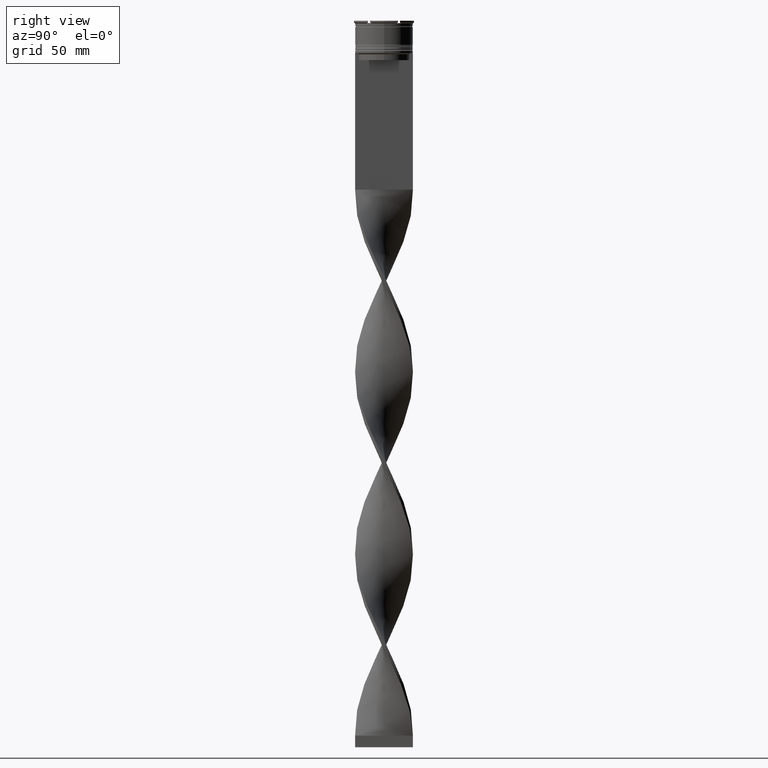
[diagram: clean part render]
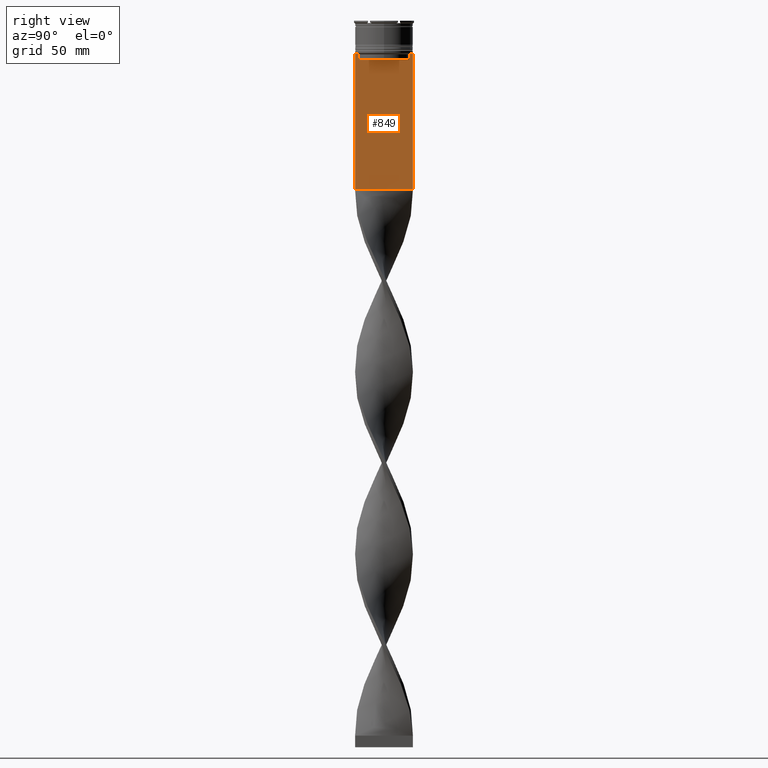
[diagram: same view with one face highlighted and labeled with its STEP entity id]
A machine part, right view. The second image highlights one B-rep face of the part: STEP entity #849.
In plain terms, the highlighted planar face has unit normal (-1, 0, 0).
Its self-contained STEP definition (entity closure, byte-faithful):
#2 = CARTESIAN_POINT ( 'NONE',  ( 0.7500000000000002220, -12.50000000000000000, -14.00000000000000178 ) ) ;
#25 = DIRECTION ( 'NONE',  ( 0.000000000000000000, -1.000000000000000000, 0.000000000000000000 ) ) ;
#64 = CARTESIAN_POINT ( 'NONE',  ( 0.7500000000000002220, -12.50000000000000000, 11.04495957273638673 ) ) ;
#82 = CARTESIAN_POINT ( 'NONE',  ( 0.7500000000000002220, -11.37530219378809093, -14.00000000000000178 ) ) ;
#83 = LINE ( 'NONE', #832, #3666 ) ;
#131 = EDGE_CURVE ( 'NONE', #1029, #1816, #2159, .T. ) ;
#167 = DIRECTION ( 'NONE',  ( 0.000000000000000000, 0.000000000000000000, -1.000000000000000000 ) ) ;
#326 = ORIENTED_EDGE ( 'NONE', *, *, #369, .T. ) ;
#365 = LINE ( 'NONE', #3861, #1030 ) ;
#369 = EDGE_CURVE ( 'NONE', #1196, #4322, #2266, .T. ) ;
#450 = VERTEX_POINT ( 'NONE', #3058 ) ;
#466 = CARTESIAN_POINT ( 'NONE',  ( 0.7500000000000002220, 10.87416663473574197, -14.50000000000000000 ) ) ;
#484 = CARTESIAN_POINT ( 'NONE',  ( 0.7500000000000002220, 11.37530219378809093, -14.00000000000000178 ) ) ;
#536 = CARTESIAN_POINT ( 'NONE',  ( 0.7500000000000002220, -10.87416663473574019, -17.00000000000000000 ) ) ;
#617 = LINE ( 'NONE', #682, #4164 ) ;
#657 = CARTESIAN_POINT ( 'NONE',  ( 0.7500000000000002220, -12.50000000000000000, -73.00000000000001421 ) ) ;
#682 = CARTESIAN_POINT ( 'NONE',  ( 0.7500000000000002220, -12.50000000000000000, -14.00000000000000178 ) ) ;
#780 = DIRECTION ( 'NONE',  ( 0.000000000000000000, 0.000000000000000000, -1.000000000000000000 ) ) ;
#832 = CARTESIAN_POINT ( 'NONE',  ( 0.7500000000000002220, -12.50000000000000000, -14.00000000000000178 ) ) ;
#849 = ADVANCED_FACE ( 'NONE', ( #3531 ), #3193, .F. ) ;
#949 = VECTOR ( 'NONE', #780, 1000.000000000000000 ) ;
#1015 = EDGE_CURVE ( 'NONE', #3345, #2832, #617, .T. ) ;
#1029 = VERTEX_POINT ( 'NONE', #657 ) ;
#1030 = VECTOR ( 'NONE', #1760, 1000.000000000000000 ) ;
#1095 = ORIENTED_EDGE ( 'NONE', *, *, #4063, .T. ) ;
#1108 = DIRECTION ( 'NONE',  ( -1.000000000000000000, 0.000000000000000000, 0.000000000000000000 ) ) ;
#1113 = ORIENTED_EDGE ( 'NONE', *, *, #2727, .T. ) ;
#1158 = CARTESIAN_POINT ( 'NONE',  ( 0.7500000000000002220, -10.87416663473574197, 0.000000000000000000 ) ) ;
#1192 = LINE ( 'NONE', #4026, #1695 ) ;
#1196 = VERTEX_POINT ( 'NONE', #536 ) ;
#1256 = EDGE_CURVE ( 'NONE', #450, #1816, #2892, .T. ) ;
#1380 = LINE ( 'NONE', #3484, #2661 ) ;
#1417 = CARTESIAN_POINT ( 'NONE',  ( 0.7500000000000002220, -12.50000000000000000, -73.00000000000001421 ) ) ;
#1418 = B_SPLINE_CURVE_WITH_KNOTS ( 'NONE', 3,
 ( #484, #4275, #1834, #466 ),
 .UNSPECIFIED., .F., .F.,
 ( 4, 4 ),
 ( 0.01936090553552769281, 0.02006881572333104116 ),
 .UNSPECIFIED. ) ;
#1424 = B_SPLINE_CURVE_WITH_KNOTS ( 'NONE', 3,
 ( #3263, #4348, #1515, #1910 ),
 .UNSPECIFIED., .F., .F.,
 ( 4, 4 ),
 ( 0.05009718908159448147, 0.05081156920313959630 ),
 .UNSPECIFIED. ) ;
#1515 = CARTESIAN_POINT ( 'NONE',  ( 0.7500000000000002220, -11.20826532207830439, -14.16667499063191826 ) ) ;
#1599 = CARTESIAN_POINT ( 'NONE',  ( 0.7500000000000002220, -12.37729776647553059, -14.00000000000000178 ) ) ;
#1695 = VECTOR ( 'NONE', #167, 1000.000000000000000 ) ;
#1707 = CARTESIAN_POINT ( 'NONE',  ( 0.7500000000000002220, -12.50000000000000000, -14.00000000000000178 ) ) ;
#1746 = DIRECTION ( 'NONE',  ( 0.000000000000000000, 0.000000000000000000, -1.000000000000000000 ) ) ;
#1760 = DIRECTION ( 'NONE',  ( 0.000000000000000000, -1.000000000000000000, 0.000000000000000000 ) ) ;
#1768 = LINE ( 'NONE', #3464, #4327 ) ;
#1816 = VERTEX_POINT ( 'NONE', #2603 ) ;
#1834 = CARTESIAN_POINT ( 'NONE',  ( 0.7500000000000002220, 11.04122051153452055, -14.33334204648729404 ) ) ;
#1870 = ORIENTED_EDGE ( 'NONE', *, *, #2195, .T. ) ;
#1910 = CARTESIAN_POINT ( 'NONE',  ( 0.7500000000000002220, -11.37530219378809093, -14.00000000000000178 ) ) ;
#2027 = ORIENTED_EDGE ( 'NONE', *, *, #4125, .T. ) ;
#2073 = ORIENTED_EDGE ( 'NONE', *, *, #1015, .T. ) ;
#2127 = VECTOR ( 'NONE', #2565, 1000.000000000000000 ) ;
#2159 = LINE ( 'NONE', #1417, #2995 ) ;
#2195 = EDGE_CURVE ( 'NONE', #3180, #3638, #365, .T. ) ;
#2197 = DIRECTION ( 'NONE',  ( 0.000000000000000000, 1.000000000000000000, 0.000000000000000000 ) ) ;
#2266 = LINE ( 'NONE', #1158, #2127 ) ;
#2349 = EDGE_LOOP ( 'NONE', ( #2073, #2027, #1095, #3603, #326, #1113, #2791, #1870, #3817, #2812, #2446, #2639 ) ) ;
#2424 = AXIS2_PLACEMENT_3D ( 'NONE', #64, #1108, #3897 ) ;
#2433 = DIRECTION ( 'NONE',  ( 0.000000000000000000, -1.000000000000000000, 0.000000000000000000 ) ) ;
#2434 = VERTEX_POINT ( 'NONE', #3425 ) ;
#2443 = VECTOR ( 'NONE', #25, 1000.000000000000000 ) ;
#2446 = ORIENTED_EDGE ( 'NONE', *, *, #1256, .F. ) ;
#2525 = CARTESIAN_POINT ( 'NONE',  ( 0.7500000000000002220, 12.37729776647553059, -14.00000000000000178 ) ) ;
#2565 = DIRECTION ( 'NONE',  ( -0.000000000000000000, -0.000000000000000000, 1.000000000000000000 ) ) ;
#2603 = CARTESIAN_POINT ( 'NONE',  ( 0.7500000000000002220, 12.50000000000000000, -73.00000000000001421 ) ) ;
#2639 = ORIENTED_EDGE ( 'NONE', *, *, #3671, .T. ) ;
#2661 = VECTOR ( 'NONE', #1746, 1000.000000000000000 ) ;
#2727 = EDGE_CURVE ( 'NONE', #4322, #3978, #1424, .T. ) ;
#2764 = CARTESIAN_POINT ( 'NONE',  ( 0.7500000000000002220, -10.87416663473574197, -14.50000000000000000 ) ) ;
#2791 = ORIENTED_EDGE ( 'NONE', *, *, #2867, .T. ) ;
#2812 = ORIENTED_EDGE ( 'NONE', *, *, #131, .T. ) ;
#2832 = VERTEX_POINT ( 'NONE', #4383 ) ;
#2848 = LINE ( 'NONE', #2, #2443 ) ;
#2867 = EDGE_CURVE ( 'NONE', #3978, #3180, #83, .T. ) ;
#2892 = LINE ( 'NONE', #4278, #949 ) ;
#2995 = VECTOR ( 'NONE', #2197, 1000.000000000000000 ) ;
#3058 = CARTESIAN_POINT ( 'NONE',  ( 0.7500000000000002220, 12.50000000000000000, -14.00000000000000178 ) ) ;
#3125 = DIRECTION ( 'NONE',  ( 0.000000000000000000, -1.000000000000000000, 0.000000000000000000 ) ) ;
#3180 = VERTEX_POINT ( 'NONE', #1599 ) ;
#3192 = DIRECTION ( 'NONE',  ( 0.000000000000000000, -1.000000000000000000, 0.000000000000000000 ) ) ;
#3193 = PLANE ( 'NONE',  #2424 ) ;
#3212 = EDGE_CURVE ( 'NONE', #3638, #1029, #1192, .T. ) ;
#3263 = CARTESIAN_POINT ( 'NONE',  ( 0.7500000000000002220, -10.87416663473574197, -14.50000000000000000 ) ) ;
#3345 = VERTEX_POINT ( 'NONE', #2525 ) ;
#3425 = CARTESIAN_POINT ( 'NONE',  ( 0.7500000000000002220, 10.87416663473574019, -17.00000000000000000 ) ) ;
#3464 = CARTESIAN_POINT ( 'NONE',  ( 0.7500000000000002220, 10.90000000000000213, -17.00000000000000000 ) ) ;
#3484 = CARTESIAN_POINT ( 'NONE',  ( 0.7500000000000002220, 10.87416663473574197, 0.000000000000000000 ) ) ;
#3531 = FACE_OUTER_BOUND ( 'NONE', #2349, .T. ) ;
#3603 = ORIENTED_EDGE ( 'NONE', *, *, #4043, .T. ) ;
#3638 = VERTEX_POINT ( 'NONE', #1707 ) ;
#3661 = VERTEX_POINT ( 'NONE', #4216 ) ;
#3666 = VECTOR ( 'NONE', #3192, 1000.000000000000000 ) ;
#3671 = EDGE_CURVE ( 'NONE', #450, #3345, #2848, .T. ) ;
#3817 = ORIENTED_EDGE ( 'NONE', *, *, #3212, .T. ) ;
#3861 = CARTESIAN_POINT ( 'NONE',  ( 0.7500000000000002220, -12.50000000000000000, -14.00000000000000178 ) ) ;
#3897 = DIRECTION ( 'NONE',  ( 0.000000000000000000, 0.000000000000000000, 1.000000000000000000 ) ) ;
#3978 = VERTEX_POINT ( 'NONE', #82 ) ;
#4026 = CARTESIAN_POINT ( 'NONE',  ( 0.7500000000000002220, -12.50000000000000000, 11.04495957273638673 ) ) ;
#4043 = EDGE_CURVE ( 'NONE', #2434, #1196, #1768, .T. ) ;
#4063 = EDGE_CURVE ( 'NONE', #3661, #2434, #1380, .T. ) ;
#4125 = EDGE_CURVE ( 'NONE', #2832, #3661, #1418, .T. ) ;
#4164 = VECTOR ( 'NONE', #2433, 1000.000000000000000 ) ;
#4216 = CARTESIAN_POINT ( 'NONE',  ( 0.7500000000000002220, 10.87416663473574197, -14.50000000000000000 ) ) ;
#4275 = CARTESIAN_POINT ( 'NONE',  ( 0.7500000000000002220, 11.20826531587977648, -14.16667499681701514 ) ) ;
#4278 = CARTESIAN_POINT ( 'NONE',  ( 0.7500000000000002220, 12.50000000000000000, 11.04495957273638673 ) ) ;
#4322 = VERTEX_POINT ( 'NONE', #2764 ) ;
#4327 = VECTOR ( 'NONE', #3125, 1000.000000000000000 ) ;
#4348 = CARTESIAN_POINT ( 'NONE',  ( 0.7500000000000002220, -11.04122051801870441, -14.33334204001847567 ) ) ;
#4383 = CARTESIAN_POINT ( 'NONE',  ( 0.7500000000000002220, 11.37530219378809093, -14.00000000000000178 ) ) ;